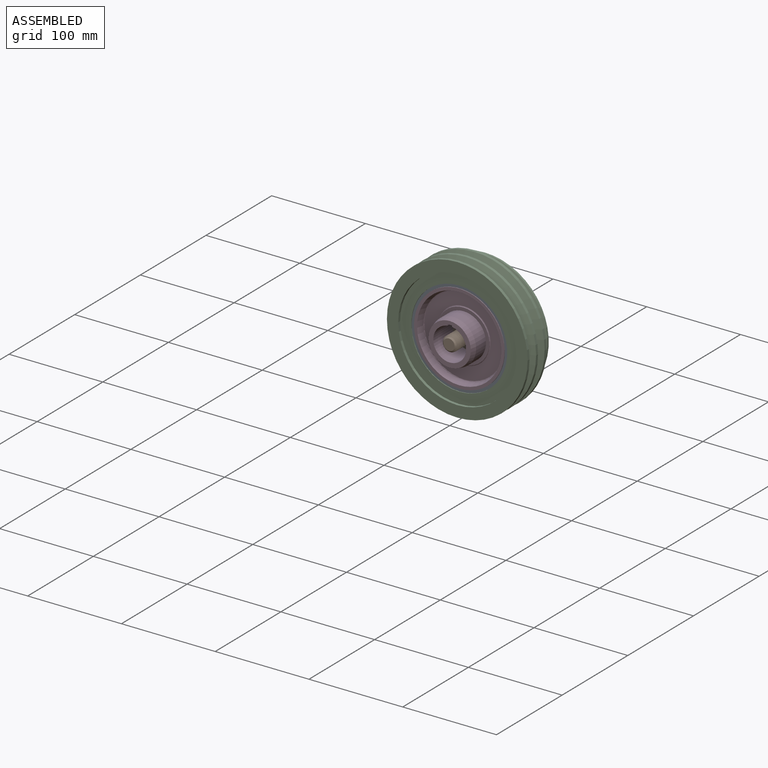
[diagram: assembled view]
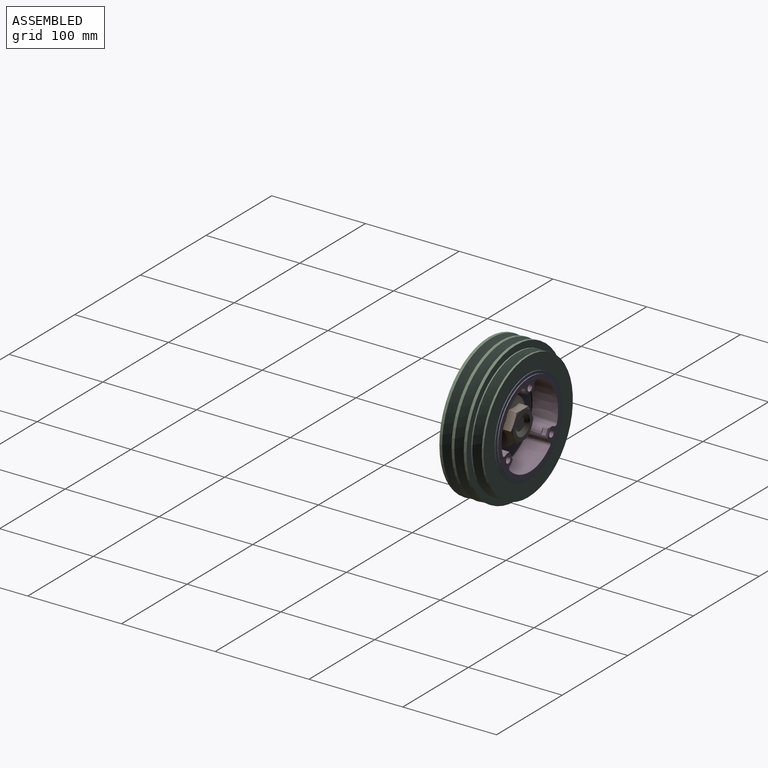
[diagram: assembled view, second angle]
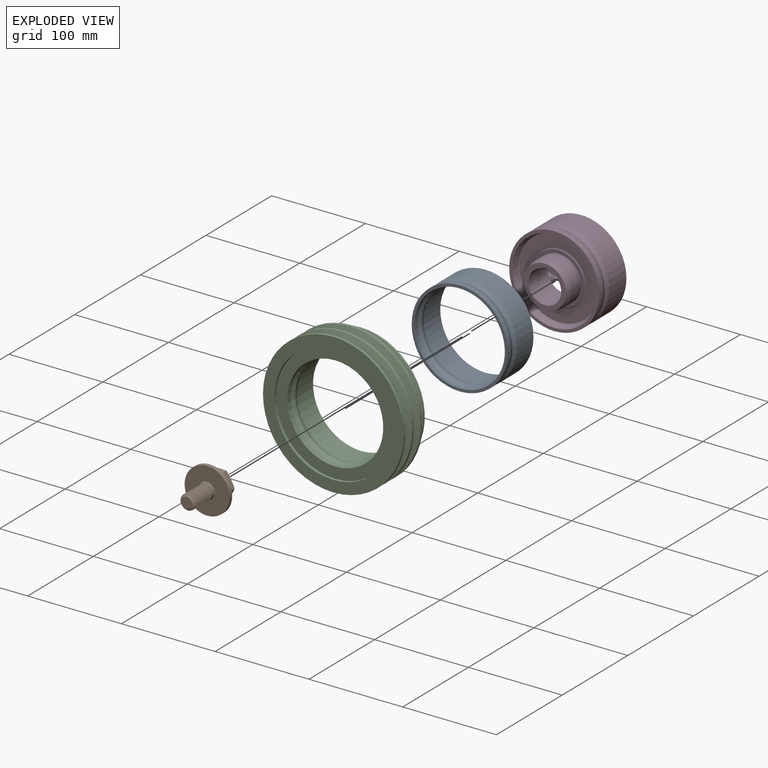
[diagram: exploded view]
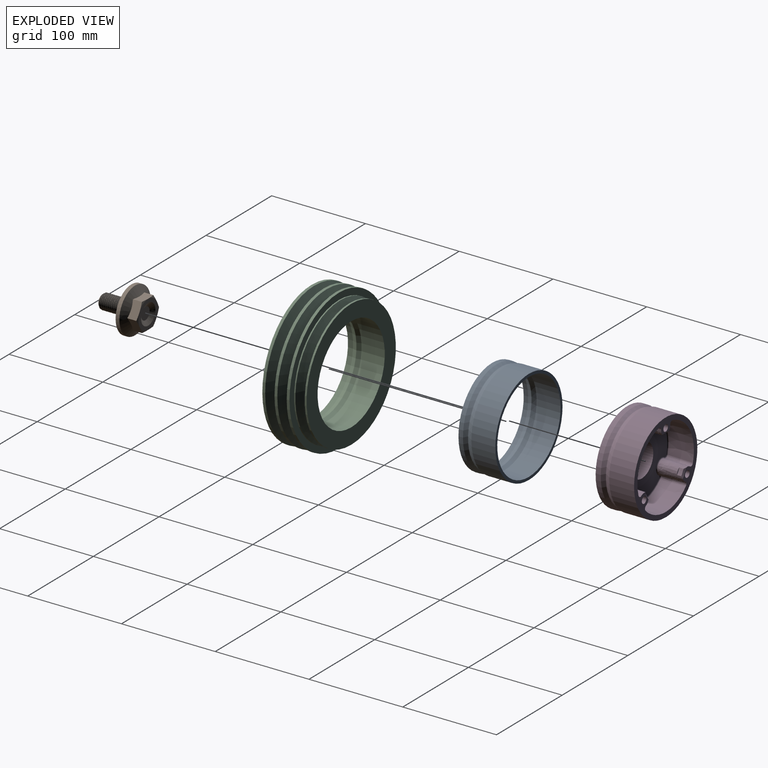
[diagram: exploded view, second angle]
ASSEMBLY  parts=4 mates=3
PART A: 12 faces, bbox 108.2x39.3x108.2 mm
  f0: cone r=51.2mm half-angle=19.1deg, axis (0,-1,0), area 1400.5mm2, adj f1,f11
  f1: cylinder r=51.2mm len=102.4mm, axis (0,-1,0), area 1544.2mm2, adj f0,f2
  f2: plane 102.4x102.4mm, normal (0,-1,0), area 936.8mm2, adj f1,f3
  f3: cylinder r=48.2mm len=96.4mm, axis (0,-1,0), area 1453.7mm2, adj f2,f4
  f4: cone r=48.2mm half-angle=19.1deg, axis (0,-1,0), area 1317.3mm2, adj f3,f5
  f5: torus R=47.7mm, axis (0,-1,0), area 195.7mm2, adj f4,f6
  f6: cone r=46.76mm half-angle=19.1deg, axis (0,1,0), area 1317.3mm2, adj f5,f7
  f7: cylinder r=48.2mm len=96.4mm, axis (0,-1,0), area 7722.7mm2, adj f6,f8
  f8: plane 102.4x102.4mm, normal (0,1,0), area 936.8mm2, adj f7,f9
  f9: cylinder r=51.2mm len=102.4mm, axis (0,-1,0), area 8203.3mm2, adj f8,f10
  f10: cone r=49.76mm half-angle=19.1deg, axis (0,1,0), area 1400.5mm2, adj f9,f11
  f11: torus R=50.7mm, axis (0,-1,0), area 208.3mm2, adj f0,f10
PART B: 38 faces, bbox 53.3x55.2x53.3 mm
  f0: cylinder r=8mm len=16mm, axis (0,1,0), area 101.8mm2, adj f1,f21,f34,f35,f36
  f1: cylinder r=8mm len=16mm, axis (0,1,0), area 5mm2, adj f0,f2,f34,f35
  f2: cylinder r=8mm len=16mm, axis (0,1,0), area 5mm2, adj f1,f3,f34,f35
  f3: cylinder r=8mm len=16mm, axis (0,1,0), area 5mm2, adj f2,f4,f34,f35
  f4: cylinder r=8mm len=16mm, axis (0,1,0), area 5mm2, adj f3,f5,f34,f35
  f5: cylinder r=8mm len=16mm, axis (0,1,0), area 5mm2, adj f4,f6,f34,f35
  f6: cylinder r=8mm len=16mm, axis (0,1,0), area 5mm2, adj f5,f7,f34,f35
  f7: cylinder r=8mm len=16mm, axis (0,1,0), area 5mm2, adj f6,f8,f34,f35
  f8: cylinder r=8mm len=16mm, axis (0,1,0), area 5mm2, adj f7,f9,f34,f35
  f9: cylinder r=8mm len=16mm, axis (0,1,0), area 5mm2, adj f8,f10,f34,f35
  f10: cylinder r=8mm len=16mm, axis (0,1,0), area 5mm2, adj f9,f11,f34,f35
  f11: cylinder r=8mm len=16mm, axis (0,1,0), area 5mm2, adj f10,f12,f34,f35
  f12: cylinder r=8mm len=16mm, axis (0,1,0), area 5mm2, adj f11,f13,f34,f35
  f13: cylinder r=8mm len=10.53mm, axis (0,1,0), area 1.4mm2, adj f12,f34,f35,f37
  f14: plane 20.31x15.6mm, normal (0.87,0,0.5), area 159.8mm2, adj f15,f16,f23,f29,f30
  f15: plane 22.64x15.61mm, normal (0,0,1), area 159.8mm2, adj f14,f19,f23,f25,f30
  f16: plane 20.31x15.6mm, normal (0.87,0,-0.5), area 159.8mm2, adj f14,f17,f23,f28,f29
  f17: plane 22.64x15.61mm, normal (0,0,-1), area 159.8mm2, adj f16,f18,f23,f27,f28
  f18: plane 20.31x15.6mm, normal (-0.87,0,-0.5), area 159.8mm2, adj f17,f19,f23,f26,f27
  f19: plane 20.31x15.6mm, normal (-0.87,0,0.5), area 159.8mm2, adj f15,f18,f23,f25,f26
  f20: plane 48x48mm, normal (0,-1,0), area 1555.1mm2, adj f21,f24
  f21: torus R=9mm, axis (0,1,0), area 82.5mm2, adj f0,f20
  f22: plane 12x12mm, normal (0,-1,0), area 113.1mm2, adj f37
  f23: cone r=24mm half-angle=60.9deg, axis (0,-1,0), area 991.9mm2, adj f14,f15,f16,f17,f18,f19,f24
  f24: cylinder r=24mm len=48mm, axis (0,1,0), area 603.2mm2, adj f20,f23
  f25: cone r=17.32mm half-angle=75deg, axis (0,-1,0), area 19.8mm2, adj f15,f19,f33
  f26: cone r=17.32mm half-angle=75deg, axis (0,-1,0), area 19.8mm2, adj f18,f19,f33
  f27: cone r=17.32mm half-angle=75deg, axis (0,-1,0), area 19.8mm2, adj f17,f18,f33
  f28: cone r=17.32mm half-angle=75deg, axis (0,-1,0), area 19.8mm2, adj f16,f17,f33
  f29: cone r=17.32mm half-angle=75deg, axis (0,-1,0), area 19.8mm2, adj f14,f16,f33
  f30: cone r=17.32mm half-angle=75deg, axis (0,-1,0), area 19.8mm2, adj f14,f15,f33
  f31: plane 13x13mm, normal (0,1,0), area 132.7mm2, adj f32
  f32: cone r=11mm half-angle=56.3deg, axis (0,1,0), area 297.3mm2, adj f31,f33
  f33: plane 30x30mm, normal (0,1,0), area 326.7mm2, adj f25,f26,f27,f28,f29,f30,f32
  f34: bspline ~29.28x18.48mm, area 1119.9mm2, adj f0,f1,f2,f3,f4,f5,f6,f7
  f35: bspline ~29.28x18.48mm, area 1172.1mm2, adj f0,f1,f2,f3,f4,f5,f6,f7
  f36: plane 1.9x1.65mm, normal (0,0,1), area 1.6mm2, adj f0,f34,f35
  f37: cone r=8mm half-angle=45deg, axis (0,1,0), area 72.7mm2, adj f13,f22,f34,f35
PART C: 24 faces, bbox 150x42.3x150 mm
  f0: cylinder r=63mm len=126mm, axis (0,-1,0), area 1187.5mm2, adj f1,f23
  f1: plane 126x126mm, normal (0,-1,0), area 4233.5mm2, adj f0,f2
  f2: cylinder r=51.2mm len=102.4mm, axis (0,-1,0), area 1769.3mm2, adj f1,f3
  f3: cone r=51.2mm half-angle=19.1deg, axis (0,-1,0), area 1400.5mm2, adj f2,f4
  f4: torus R=50.7mm, axis (0,-1,0), area 208.3mm2, adj f3,f5
  f5: cone r=49.76mm half-angle=19.1deg, axis (0,1,0), area 1400.5mm2, adj f4,f6
  f6: cylinder r=51.2mm len=102.4mm, axis (0,-1,0), area 7963.9mm2, adj f5,f7
  f7: plane 136x136mm, normal (0,1,0), area 6291.2mm2, adj f6,f8
  f8: cylinder r=68mm len=136mm, axis (0,-1,0), area 854.5mm2, adj f7,f9
  f9: cone r=56mm half-angle=70deg, axis (0,1,0), area 4974.7mm2, adj f8,f10
  f10: cylinder r=56mm len=112mm, axis (0,-1,0), area 439.8mm2, adj f9,f11
  f11: cone r=68mm half-angle=70deg, axis (0,-1,0), area 4974.7mm2, adj f10,f12
  f12: cylinder r=68mm len=136mm, axis (0,-1,0), area 555.4mm2, adj f11,f13
  f13: plane 150x150mm, normal (0,1,0), area 3144.7mm2, adj f12,f14
  f14: cylinder r=75mm len=150mm, axis (0,-1,0), area 1413.7mm2, adj f13,f15
  f15: cone r=63mm half-angle=70deg, axis (0,1,0), area 5536.4mm2, adj f14,f16
  f16: cylinder r=63mm len=126mm, axis (0,-1,0), area 494.8mm2, adj f15,f17
  f17: cone r=75mm half-angle=70deg, axis (0,-1,0), area 5536.4mm2, adj f16,f18
  f18: cylinder r=75mm len=150mm, axis (0,-1,0), area 1413.7mm2, adj f17,f19
  f19: cone r=63mm half-angle=70deg, axis (0,1,0), area 5536.4mm2, adj f18,f20
  f20: cylinder r=63mm len=126mm, axis (0,-1,0), area 494.8mm2, adj f19,f21
  f21: cone r=75mm half-angle=70deg, axis (0,-1,0), area 5536.4mm2, adj f20,f22
  f22: cylinder r=75mm len=150mm, axis (0,-1,0), area 1413.7mm2, adj f21,f23
  f23: plane 150x150mm, normal (0,-1,0), area 5202.5mm2, adj f0,f22
PART D: 77 faces, bbox 101.8x55.6x101.8 mm
  f0: plane 45x45mm, normal (0,-1,0), area 621.8mm2, adj f1,f13,f50,f51,f52
  f1: cylinder r=17.5mm len=35mm, axis (0,-1,0), area 3148.2mm2, adj f0,f2,f50,f51
  f2: plane 49x49mm, normal (0,1,0), area 917.1mm2, adj f1,f14,f50,f51,f52
  f3: cylinder r=2.5mm len=11.5mm, axis (0,1,0), area 14.9mm2, adj f44,f47,f48,f49
  f4: plane 7.13x7.13mm, normal (0,1,0), area 9.3mm2, adj f43,f47,f48,f49
  f5: plane 83.04x81.62mm, normal (0,1,0), area 2860.2mm2, adj f62,f63,f64,f65,f66,f67,f68,f69
  f6: cone r=43mm half-angle=1deg, axis (0,1,0), area 1785.1mm2, adj f16,f34,f42,f73
  f7: cylinder r=2.5mm len=11.5mm, axis (0,1,0), area 14.9mm2, adj f36,f39,f40,f41
  f8: plane 7.13x7.13mm, normal (0,1,0), area 9.3mm2, adj f35,f39,f40,f41
  f9: cone r=43mm half-angle=1deg, axis (0,1,0), area 1785.1mm2, adj f16,f26,f34,f66
  f10: cylinder r=2.5mm len=11.5mm, axis (0,1,0), area 14.9mm2, adj f28,f31,f32,f33
  f11: plane 7.13x7.13mm, normal (0,1,0), area 9.3mm2, adj f27,f31,f32,f33
  f12: cylinder r=24mm len=48mm, axis (0,-1,0), area 2261.9mm2, adj f13,f25
  f13: cone r=22.5mm half-angle=14deg, axis (0,1,0), area 903.5mm2, adj f0,f12
  f14: cylinder r=24.5mm len=49mm, axis (0,-1,0), area 153.9mm2, adj f2,f74
  f15: cone r=43mm half-angle=1deg, axis (0,1,0), area 1785.1mm2, adj f16,f26,f42,f65
  f16: plane 96.42x96.42mm, normal (0,1,0), area 1774mm2, adj f6,f9,f15,f17,f26,f27,f34,f35
  f17: cylinder r=48.2mm len=96.4mm, axis (0,-1,0), area 8025.5mm2, adj f16,f18
  f18: cone r=48.2mm half-angle=19.1deg, axis (0,1,0), area 1317.3mm2, adj f17,f19
  f19: torus R=47.7mm, axis (0,-1,0), area 195.7mm2, adj f18,f20
  f20: cone r=48.2mm half-angle=19.1deg, axis (0,-1,0), area 1317.3mm2, adj f19,f21
  f21: cylinder r=48.2mm len=96.4mm, axis (0,-1,0), area 1665.7mm2, adj f20,f22
  f22: plane 96.4x96.4mm, normal (0,-1,0), area 936.9mm2, adj f21,f23
  f23: cone r=43mm half-angle=14.9deg, axis (0,-1,0), area 1937.9mm2, adj f22,f75
  f24: plane 84.46x84.46mm, normal (0,-1,0), area 3051.3mm2, adj f75,f76
  f25: plane 55x55mm, normal (0,-1,0), area 566.3mm2, adj f12,f76
  f26: bspline ~26.52x22.55mm, area 871.1mm2, adj f9,f15,f16,f59,f60,f61,f62,f63
  f27: cylinder r=3.5mm len=14mm, axis (0,1,0), area 307.9mm2, adj f11,f16
  f28: cone r=0mm half-angle=59deg, axis (0,1,0), area 22.9mm2, adj f10,f29
  f29: cylinder r=2.5mm len=5mm, axis (0,1,0), area 6.4mm2, adj f28,f30,f32
  f30: plane 0.9x0.78mm, normal (1,0,0), area 0.4mm2, adj f29,f31,f32
  f31: bspline ~12.95x7.57mm, area 197.9mm2, adj f10,f11,f30,f32,f33
  f32: bspline ~13.12x7.57mm, area 205mm2, adj f10,f11,f29,f30,f31,f33
  f33: cone r=2.5mm half-angle=45deg, axis (0,1,0), area 4.8mm2, adj f10,f11,f31,f32
  f34: bspline ~26.52x19.53mm, area 871.1mm2, adj f6,f9,f16,f56,f57,f58,f68,f70
  f35: cylinder r=3.5mm len=14mm, axis (0,1,0), area 307.9mm2, adj f8,f16
  f36: cone r=0mm half-angle=59deg, axis (0,1,0), area 22.9mm2, adj f7,f37
  f37: cylinder r=2.5mm len=5mm, axis (0,1,0), area 6.4mm2, adj f36,f38,f40
  f38: plane 0.9x0.68mm, normal (-0.5,0,-0.87), area 0.4mm2, adj f37,f39,f40
  f39: bspline ~12.95x7.57mm, area 197.9mm2, adj f7,f8,f38,f40,f41
  f40: bspline ~13.12x7.57mm, area 205mm2, adj f7,f8,f37,f38,f39,f41
  f41: cone r=2.5mm half-angle=45deg, axis (0,1,0), area 4.8mm2, adj f7,f8,f39,f40
  f42: bspline ~26.52x19.53mm, area 871.1mm2, adj f6,f15,f16,f53,f54,f55,f67,f69
  f43: cylinder r=3.5mm len=14mm, axis (0,1,0), area 307.9mm2, adj f4,f16
  f44: cone r=0mm half-angle=59deg, axis (0,1,0), area 22.9mm2, adj f3,f45
  f45: cylinder r=2.5mm len=5mm, axis (0,1,0), area 6.4mm2, adj f44,f46,f48
  f46: plane 0.9x0.68mm, normal (-0.5,0,0.87), area 0.4mm2, adj f45,f47,f48
  f47: bspline ~12.9x6.56mm, area 197.9mm2, adj f3,f4,f46,f48,f49
  f48: bspline ~13.06x6.56mm, area 205mm2, adj f3,f4,f45,f46,f47,f49
  f49: cone r=2.5mm half-angle=45deg, axis (0,1,0), area 4.8mm2, adj f3,f4,f47,f48
  f50: plane 30x1.43mm, normal (-1,0,0), area 42.9mm2, adj f0,f1,f2,f52
  f51: plane 30x1.43mm, normal (1,0,0), area 42.9mm2, adj f0,f1,f2,f52
  f52: plane 30x5mm, normal (0,0,-1), area 150mm2, adj f0,f2,f50,f51
  f53: plane 6.07x3.51mm, normal (0,1,0), area 5.2mm2, adj f42,f54
  f54: cylinder r=32mm len=6.05mm, axis (0,1,0), area 30.9mm2, adj f42,f53,f55
  f55: cone r=33.5mm half-angle=45deg, axis (0,1,0), area 17.8mm2, adj f16,f42,f54
  f56: plane 6.07x3.51mm, normal (0,1,0), area 5.2mm2, adj f34,f57
  f57: cylinder r=32mm len=6.05mm, axis (0,1,0), area 30.9mm2, adj f34,f56,f58
  f58: cone r=33.5mm half-angle=45deg, axis (0,1,0), area 17.8mm2, adj f16,f34,f57
  f59: cone r=33.5mm half-angle=45deg, axis (0,1,0), area 17.8mm2, adj f16,f26,f60
  f60: cylinder r=32mm len=6.99mm, axis (0,1,0), area 30.9mm2, adj f26,f59,f61
  f61: plane 7x1.12mm, normal (0,1,0), area 5.2mm2, adj f26,f60
  f62: bspline ~17.01x9.24mm, area 38.5mm2, adj f5,f26,f63,f64
  f63: bspline ~4.46x4mm, area 7.5mm2, adj f5,f26,f62,f65
  f64: bspline ~4.42x3.28mm, area 7.5mm2, adj f5,f26,f62,f66
  f65: torus R=41.52mm, axis (0,1,0), area 101.9mm2, adj f5,f15,f63,f67
  f66: torus R=41.52mm, axis (0,1,0), area 101.9mm2, adj f5,f9,f64,f68
  f67: bspline ~4.79x3.13mm, area 7.5mm2, adj f5,f42,f65,f69
  f68: bspline ~5.36x3.13mm, area 7.5mm2, adj f5,f34,f66,f70
  f69: bspline ~16.13x12.88mm, area 38.5mm2, adj f5,f42,f67,f71
  f70: bspline ~16.13x12.89mm, area 38.5mm2, adj f5,f34,f68,f72
  f71: bspline ~5.67x2.84mm, area 7.5mm2, adj f5,f42,f69,f73
  f72: bspline ~5.67x2.84mm, area 7.5mm2, adj f5,f34,f70,f73
  f73: torus R=41.52mm, axis (0,1,0), area 101.9mm2, adj f5,f6,f71,f72
  f74: torus R=25.5mm, axis (0,1,0), area 245.4mm2, adj f5,f14
  f75: torus R=42.23mm, axis (0,-1,0), area 352.3mm2, adj f23,f24
  f76: torus R=28.5mm, axis (0,-1,0), area 275mm2, adj f24,f25
PLACE A t=(0,15.2,0)mm
PLACE B t=(0,-1,0)mm
PLACE C t=(0,11.5,0)mm
PLACE D at identity
MATE fastened A.f0 <-> D.f1  axis (0,-1,0) through (0,15.2,0)mm
MATE fastened C.f0 <-> A.f0  axis (0,-1,0) through (0,24.5,0)mm
MATE fastened B.f0 <-> D.f1  axis (0,-1,0) through (0,30,0)mm
